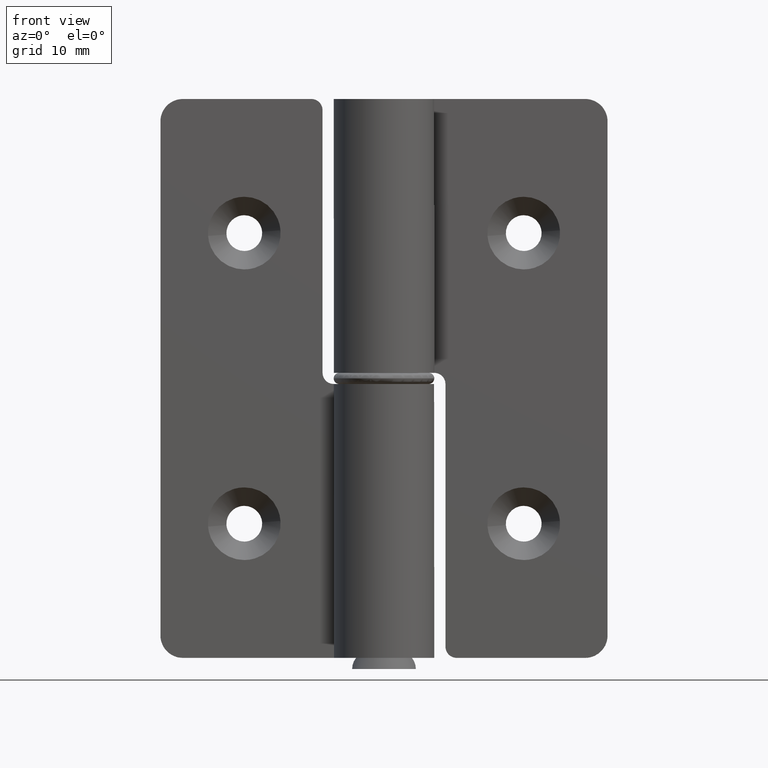
[diagram: clean part render]
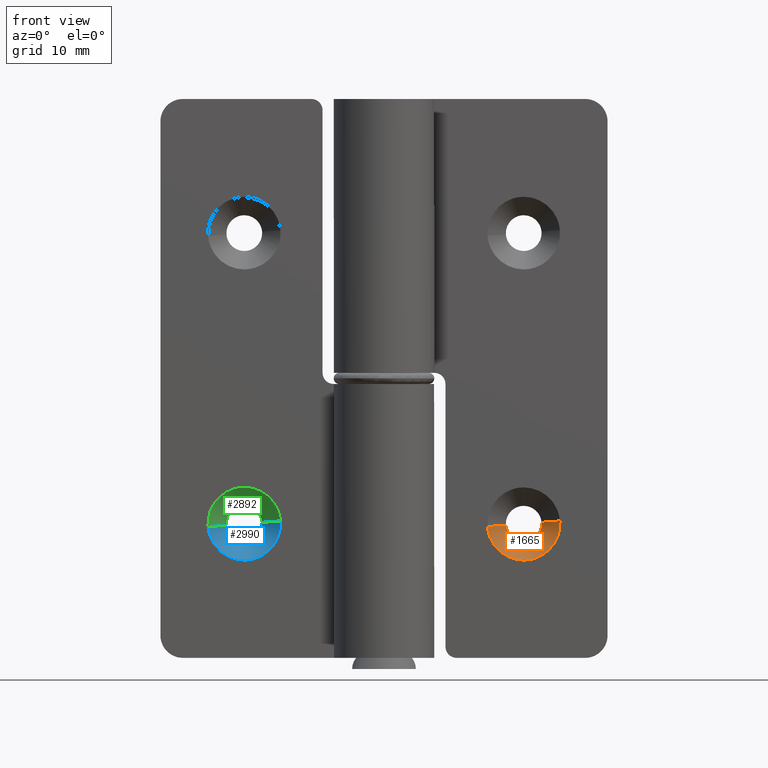
[diagram: same view with three faces highlighted in distinct colors, each labeled with its STEP entity id]
A machine part, front view with three faces highlighted in distinct colors.
Their STEP definitions:

[orange] entity #1665 — the highlighted face is a freeform B-spline surface patch.
#1474=CARTESIAN_POINT('',(14.095067733968611,4.149999999918546,12.125534553427871));
#1475=VERTEX_POINT('',#1474);
#1489=CARTESIAN_POINT('',(15.739981334575100,2.499999999981077,12.254992061257470));
#1490=VERTEX_POINT('',#1489);
#1491=CARTESIAN_POINT('',(14.095067733968611,4.149999999918546,12.125534553427871));
#1492=CARTESIAN_POINT('',(15.739981334575100,2.499999999981077,12.254992061257470));
#1493=QUASI_UNIFORM_CURVE('',1,(#1491,#1492),.UNSPECIFIED.,.F.,.U.);
#1494=EDGE_CURVE('',#1475,#1490,#1493,.T.);
#1511=CARTESIAN_POINT('',(9.260018665406104,2.499999999981077,11.745007938742530));
#1512=VERTEX_POINT('',#1511);
#1528=CARTESIAN_POINT('',(10.904932266012590,4.149999999918546,11.874465446572140));
#1529=VERTEX_POINT('',#1528);
#1530=CARTESIAN_POINT('',(10.904932266012590,4.149999999918546,11.874465446572140));
#1531=CARTESIAN_POINT('',(9.260018665406104,2.499999999981077,11.745007938742530));
#1532=QUASI_UNIFORM_CURVE('',1,(#1530,#1531),.UNSPECIFIED.,.F.,.U.);
#1533=EDGE_CURVE('',#1529,#1512,#1532,.T.);
#1568=CARTESIAN_POINT('',(10.946055106041859,4.191249999951990,11.877701884534829));
#1569=CARTESIAN_POINT('',(11.068353221507024,4.191249999951990,10.323756990586091));
#1570=CARTESIAN_POINT('',(12.622298115455770,4.191249999951990,10.446055106051260));
#1571=CARTESIAN_POINT('',(14.176243009404510,4.191249999951990,10.568353221516425));
#1572=CARTESIAN_POINT('',(14.053944893939340,4.191249999951990,12.122298115465171));
#1573=CARTESIAN_POINT('',(9.217867754397858,2.457718750001200,11.741690590247730));
#1574=CARTESIAN_POINT('',(9.476177164150126,2.457718750001199,8.459558344654990));
#1575=CARTESIAN_POINT('',(12.758309409742870,2.457718750001200,8.717867754407259));
#1576=CARTESIAN_POINT('',(16.040441655335609,2.457718750001199,8.976177164159527));
#1577=CARTESIAN_POINT('',(15.782132245583339,2.457718750001200,12.258309409752270));
#1585=(BOUNDED_SURFACE()B_SPLINE_SURFACE(2,1,((#1568,#1573),(#1569,#1574),(#1570,#1575),(#1571,#1576),(#1572,#1577)),.UNSPECIFIED.,.F.,.F.,.U.)B_SPLINE_SURFACE_WITH_KNOTS((3,2,3),(2,2),(0.0,5.454830179492141,10.909660358984279),(0.0,2.451583404477993),.UNSPECIFIED.)GEOMETRIC_REPRESENTATION_ITEM()RATIONAL_B_SPLINE_SURFACE(((1.0,1.0),(0.707106781186548,0.707106781186548),(1.0,1.0),(0.707106781186548,0.707106781186548),(1.0,1.0)))REPRESENTATION_ITEM('')SURFACE());
#1586=CARTESIAN_POINT('',(14.097015677451701,4.149999999953160,12.097677663335910));
#1587=VERTEX_POINT('',#1586);
#1588=CARTESIAN_POINT('',(14.095067733968607,4.149999999918546,12.125534553427867));
#1589=CARTESIAN_POINT('',(14.096163257409380,4.149999999935853,12.111614608104714));
#1590=CARTESIAN_POINT('',(14.097015677451706,4.149999999953160,12.097677663335917));
#1598=(BOUNDED_CURVE()B_SPLINE_CURVE(2,(#1588,#1589,#1590),.UNSPECIFIED.,.F.,.U.)B_SPLINE_CURVE_WITH_KNOTS((3,3),(0.236331300604684,0.239332962233251),.UNSPECIFIED.)CURVE()GEOMETRIC_REPRESENTATION_ITEM()RATIONAL_B_SPLINE_CURVE((0.969723356113210,0.972855475526161,0.976072041654518))REPRESENTATION_ITEM(''));
#1599=EDGE_CURVE('',#1475,#1587,#1598,.T.);
#1600=ORIENTED_EDGE('',*,*,#1599,.T.);
#1601=CARTESIAN_POINT('',(12.499999999990600,4.149999999953160,10.400000000008960));
#1602=VERTEX_POINT('',#1601);
#1603=CARTESIAN_POINT('',(14.097015677451703,4.149999999953160,12.097677663335912));
#1604=CARTESIAN_POINT('',(14.099999999981636,4.149999999953160,12.048884421317929));
#1605=CARTESIAN_POINT('',(14.099999999981639,4.149999999953160,12.0));
#1606=CARTESIAN_POINT('',(14.099999999981636,4.149999999953160,10.400000000008964));
#1607=CARTESIAN_POINT('',(12.499999999990600,4.149999999953160,10.400000000008960));
#1615=(BOUNDED_CURVE()B_SPLINE_CURVE(2,(#1603,#1604,#1605,#1606,#1607),.UNSPECIFIED.,.F.,.U.)B_SPLINE_CURVE_WITH_KNOTS((3,2,3),(0.239332962233251,0.250000000000000,0.500000000000000),.UNSPECIFIED.)CURVE()GEOMETRIC_REPRESENTATION_ITEM()RATIONAL_B_SPLINE_CURVE((0.976072041654518,0.987502787893168,1.0,0.707106781186548,1.0))REPRESENTATION_ITEM(''));
#1616=EDGE_CURVE('',#1587,#1602,#1615,.T.);
#1617=ORIENTED_EDGE('',*,*,#1616,.T.);
#1618=CARTESIAN_POINT('',(12.499999999990600,4.149999999953160,10.400000000008960));
#1619=CARTESIAN_POINT('',(11.020975213571541,4.149999999935853,10.400000000007605));
#1620=CARTESIAN_POINT('',(10.904932266012588,4.149999999918546,11.874465446572138));
#1628=(BOUNDED_CURVE()B_SPLINE_CURVE(2,(#1618,#1619,#1620),.UNSPECIFIED.,.F.,.U.)B_SPLINE_CURVE_WITH_KNOTS((3,3),(0.500000000000000,0.736331300604685),.UNSPECIFIED.)CURVE()GEOMETRIC_REPRESENTATION_ITEM()RATIONAL_B_SPLINE_CURVE((1.0,0.723120658638097,0.969723356113210))REPRESENTATION_ITEM(''));
#1629=EDGE_CURVE('',#1602,#1529,#1628,.T.);
#1630=ORIENTED_EDGE('',*,*,#1629,.T.);
#1631=ORIENTED_EDGE('',*,*,#1533,.T.);
#1632=CARTESIAN_POINT('',(12.499999999990600,2.500000000000000,8.750000000055810));
#1633=VERTEX_POINT('',#1632);
#1634=CARTESIAN_POINT('',(12.499999999990600,2.500000000000000,8.750000000055810));
#1635=CARTESIAN_POINT('',(9.495730902278329,2.499999999990539,8.750000000055069));
#1636=CARTESIAN_POINT('',(9.260018665406104,2.499999999981077,11.745007938742532));
#1644=(BOUNDED_CURVE()B_SPLINE_CURVE(2,(#1634,#1635,#1636),.UNSPECIFIED.,.F.,.U.)B_SPLINE_CURVE_WITH_KNOTS((3,3),(0.500000000000000,0.736331300625102),.UNSPECIFIED.)CURVE()GEOMETRIC_REPRESENTATION_ITEM()RATIONAL_B_SPLINE_CURVE((1.0,0.723120658614177,0.969723356155819))REPRESENTATION_ITEM(''));
#1645=EDGE_CURVE('',#1633,#1512,#1644,.T.);
#1646=ORIENTED_EDGE('',*,*,#1645,.F.);
#1647=CARTESIAN_POINT('',(15.739981334575095,2.499999999981077,12.254992061257470));
#1648=CARTESIAN_POINT('',(15.749999999953321,2.499999999981420,12.127692847846966));
#1649=CARTESIAN_POINT('',(15.749999999952941,2.499999999981792,12.000000000001430));
#1650=CARTESIAN_POINT('',(15.749999999943512,2.499999999991254,8.750000000056495));
#1651=CARTESIAN_POINT('',(12.499999999990600,2.500000000000000,8.750000000055810));
#1659=(BOUNDED_CURVE()B_SPLINE_CURVE(2,(#1647,#1648,#1649,#1650,#1651),.UNSPECIFIED.,.F.,.U.)B_SPLINE_CURVE_WITH_KNOTS((3,2,3),(0.236331300625102,0.250000000000000,0.500000000000000),.UNSPECIFIED.)CURVE()GEOMETRIC_REPRESENTATION_ITEM()RATIONAL_B_SPLINE_CURVE((0.969723356155820,0.983986122572371,1.0,0.707106781186547,1.0))REPRESENTATION_ITEM(''));
#1660=EDGE_CURVE('',#1490,#1633,#1659,.T.);
#1661=ORIENTED_EDGE('',*,*,#1660,.F.);
#1662=ORIENTED_EDGE('',*,*,#1494,.F.);
#1663=EDGE_LOOP('',(#1600,#1617,#1630,#1631,#1646,#1661,#1662));
#1664=FACE_OUTER_BOUND('',#1663,.T.);
#1665=ADVANCED_FACE('',(#1664),#1585,.F.);

[blue] entity #2990 — the highlighted face is a freeform B-spline surface patch.
#2799=CARTESIAN_POINT('',(-10.904932266031009,4.149999999914467,12.125534553427871));
#2800=VERTEX_POINT('',#2799);
#2814=CARTESIAN_POINT('',(-9.260018665377828,2.499999999930150,12.254992061261150));
#2815=VERTEX_POINT('',#2814);
#2816=CARTESIAN_POINT('',(-10.904932266031009,4.149999999914467,12.125534553427871));
#2817=CARTESIAN_POINT('',(-9.260018665377828,2.499999999930150,12.254992061261150));
#2818=QUASI_UNIFORM_CURVE('',1,(#2816,#2817),.UNSPECIFIED.,.F.,.U.);
#2819=EDGE_CURVE('',#2800,#2815,#2818,.T.);
#2836=CARTESIAN_POINT('',(-15.739981334640211,2.499999999930150,11.745007938738860));
#2837=VERTEX_POINT('',#2836);
#2853=CARTESIAN_POINT('',(-14.095067733987030,4.149999999914466,11.874465446572129));
#2854=VERTEX_POINT('',#2853);
#2855=CARTESIAN_POINT('',(-14.095067733987030,4.149999999914466,11.874465446572129));
#2856=CARTESIAN_POINT('',(-15.739981334640211,2.499999999930150,11.745007938738860));
#2857=QUASI_UNIFORM_CURVE('',1,(#2855,#2856),.UNSPECIFIED.,.F.,.U.);
#2858=EDGE_CURVE('',#2854,#2837,#2857,.T.);
#2893=CARTESIAN_POINT('',(-14.053944893956601,4.191249999949081,11.877701884534920));
#2894=CARTESIAN_POINT('',(-13.931646778491519,4.191249999949080,10.323756990587349));
#2895=CARTESIAN_POINT('',(-12.377701884543949,4.191249999949081,10.446055106052430));
#2896=CARTESIAN_POINT('',(-10.823756990596371,4.191249999949080,10.568353221517501));
#2897=CARTESIAN_POINT('',(-10.946055106061451,4.191249999949081,12.122298115465080));
#2898=CARTESIAN_POINT('',(-15.782132245649651,2.457718749949074,11.741690590243961));
#2899=CARTESIAN_POINT('',(-15.523822835893620,2.457718749949074,8.459558344603332));
#2900=CARTESIAN_POINT('',(-12.241690590252979,2.457718749949074,8.717867754359370));
#2901=CARTESIAN_POINT('',(-8.959558344612354,2.457718749949074,8.976177164115407));
#2902=CARTESIAN_POINT('',(-9.217867754368392,2.457718749949074,12.258309409756039));
#2910=(BOUNDED_SURFACE()B_SPLINE_SURFACE(2,1,((#2893,#2898),(#2894,#2899),(#2895,#2900),(#2896,#2901),(#2897,#2902)),.UNSPECIFIED.,.F.,.F.,.U.)B_SPLINE_SURFACE_WITH_KNOTS((3,2,3),(2,2),(0.0,5.454830179571729,10.909660359143460),(0.0,2.451583404547590),.UNSPECIFIED.)GEOMETRIC_REPRESENTATION_ITEM()RATIONAL_B_SPLINE_SURFACE(((1.0,1.0),(0.707106781186548,0.707106781186548),(1.0,1.0),(0.707106781186548,0.707106781186548),(1.0,1.0)))REPRESENTATION_ITEM('')SURFACE());
#2911=CARTESIAN_POINT('',(-10.902984322547921,4.149999999949080,12.097677663335910));
#2912=VERTEX_POINT('',#2911);
#2913=CARTESIAN_POINT('',(-10.904932266031011,4.149999999914466,12.125534553427867));
#2914=CARTESIAN_POINT('',(-10.903836742590236,4.149999999931773,12.111614608104714));
#2915=CARTESIAN_POINT('',(-10.902984322547917,4.149999999949080,12.097677663335917));
#2923=(BOUNDED_CURVE()B_SPLINE_CURVE(2,(#2913,#2914,#2915),.UNSPECIFIED.,.F.,.U.)B_SPLINE_CURVE_WITH_KNOTS((3,3),(0.236331300604684,0.239332962233251),.UNSPECIFIED.)CURVE()GEOMETRIC_REPRESENTATION_ITEM()RATIONAL_B_SPLINE_CURVE((0.969723356113210,0.972855475526161,0.976072041654518))REPRESENTATION_ITEM(''));
#2924=EDGE_CURVE('',#2800,#2912,#2923,.T.);
#2925=ORIENTED_EDGE('',*,*,#2924,.T.);
#2926=CARTESIAN_POINT('',(-12.500000000009020,4.149999999949080,10.400000000008960));
#2927=VERTEX_POINT('',#2926);
#2928=CARTESIAN_POINT('',(-10.902984322547923,4.149999999949081,12.097677663335913));
#2929=CARTESIAN_POINT('',(-10.900000000017991,4.149999999949080,12.048884421317931));
#2930=CARTESIAN_POINT('',(-10.900000000017990,4.149999999949080,12.0));
#2931=CARTESIAN_POINT('',(-10.900000000017986,4.149999999949080,10.400000000008964));
#2932=CARTESIAN_POINT('',(-12.500000000009020,4.149999999949080,10.400000000008960));
#2940=(BOUNDED_CURVE()B_SPLINE_CURVE(2,(#2928,#2929,#2930,#2931,#2932),.UNSPECIFIED.,.F.,.U.)B_SPLINE_CURVE_WITH_KNOTS((3,2,3),(0.239332962233251,0.250000000000000,0.500000000000000),.UNSPECIFIED.)CURVE()GEOMETRIC_REPRESENTATION_ITEM()RATIONAL_B_SPLINE_CURVE((0.976072041654518,0.987502787893168,1.0,0.707106781186548,1.0))REPRESENTATION_ITEM(''));
#2941=EDGE_CURVE('',#2912,#2927,#2940,.T.);
#2942=ORIENTED_EDGE('',*,*,#2941,.T.);
#2943=CARTESIAN_POINT('',(-12.500000000009020,4.149999999949080,10.400000000008960));
#2944=CARTESIAN_POINT('',(-13.979024786428075,4.149999999931774,10.400000000007608));
#2945=CARTESIAN_POINT('',(-14.095067733987030,4.149999999914465,11.874465446572135));
#2953=(BOUNDED_CURVE()B_SPLINE_CURVE(2,(#2943,#2944,#2945),.UNSPECIFIED.,.F.,.U.)B_SPLINE_CURVE_WITH_KNOTS((3,3),(0.500000000000000,0.736331300604684),.UNSPECIFIED.)CURVE()GEOMETRIC_REPRESENTATION_ITEM()RATIONAL_B_SPLINE_CURVE((1.0,0.723120658638097,0.969723356113209))REPRESENTATION_ITEM(''));
#2954=EDGE_CURVE('',#2927,#2854,#2953,.T.);
#2955=ORIENTED_EDGE('',*,*,#2954,.T.);
#2956=ORIENTED_EDGE('',*,*,#2858,.T.);
#2957=CARTESIAN_POINT('',(-12.500000000009020,2.499999999949075,8.750000000008965));
#2958=VERTEX_POINT('',#2957);
#2959=CARTESIAN_POINT('',(-12.500000000009020,2.499999999949075,8.750000000008965));
#2960=CARTESIAN_POINT('',(-15.504269097764601,2.499999999939612,8.750000000008221));
#2961=CARTESIAN_POINT('',(-15.739981334640218,2.499999999930151,11.745007938738858));
#2969=(BOUNDED_CURVE()B_SPLINE_CURVE(2,(#2959,#2960,#2961),.UNSPECIFIED.,.F.,.U.)B_SPLINE_CURVE_WITH_KNOTS((3,3),(0.500000000000000,0.736331300625102),.UNSPECIFIED.)CURVE()GEOMETRIC_REPRESENTATION_ITEM()RATIONAL_B_SPLINE_CURVE((1.0,0.723120658614176,0.969723356155820))REPRESENTATION_ITEM(''));
#2970=EDGE_CURVE('',#2958,#2837,#2969,.T.);
#2971=ORIENTED_EDGE('',*,*,#2970,.F.);
#2972=CARTESIAN_POINT('',(-9.260018665377828,2.499999999930150,12.254992061261142));
#2973=CARTESIAN_POINT('',(-9.249999999999464,2.499999999930493,12.127692847848804));
#2974=CARTESIAN_POINT('',(-9.249999999999835,2.499999999930866,12.000000000001430));
#2975=CARTESIAN_POINT('',(-9.250000000009267,2.499999999940327,8.750000000009651));
#2976=CARTESIAN_POINT('',(-12.500000000009020,2.499999999949075,8.750000000008965));
#2984=(BOUNDED_CURVE()B_SPLINE_CURVE(2,(#2972,#2973,#2974,#2975,#2976),.UNSPECIFIED.,.F.,.U.)B_SPLINE_CURVE_WITH_KNOTS((3,2,3),(0.236331300625102,0.250000000000000,0.500000000000000),.UNSPECIFIED.)CURVE()GEOMETRIC_REPRESENTATION_ITEM()RATIONAL_B_SPLINE_CURVE((0.969723356155820,0.983986122572371,1.0,0.707106781186548,1.0))REPRESENTATION_ITEM(''));
#2985=EDGE_CURVE('',#2815,#2958,#2984,.T.);
#2986=ORIENTED_EDGE('',*,*,#2985,.F.);
#2987=ORIENTED_EDGE('',*,*,#2819,.F.);
#2988=EDGE_LOOP('',(#2925,#2942,#2955,#2956,#2971,#2986,#2987));
#2989=FACE_OUTER_BOUND('',#2988,.T.);
#2990=ADVANCED_FACE('',(#2989),#2910,.F.);

[green] entity #2892 — the highlighted face is a freeform B-spline surface patch.
#2779=CARTESIAN_POINT('',(-10.946055106061451,4.191249999949081,12.122298115465080));
#2780=CARTESIAN_POINT('',(-11.068353221526523,4.191249999949080,13.676243009412651));
#2781=CARTESIAN_POINT('',(-12.622298115474100,4.191249999949081,13.553944893947580));
#2782=CARTESIAN_POINT('',(-14.176243009421679,4.191249999949080,13.431646778482500));
#2783=CARTESIAN_POINT('',(-14.053944893956601,4.191249999949081,11.877701884534920));
#2784=CARTESIAN_POINT('',(-9.217867754368392,2.457718749949074,12.258309409756039));
#2785=CARTESIAN_POINT('',(-9.476177164124430,2.457718749949074,15.540441655396666));
#2786=CARTESIAN_POINT('',(-12.758309409765060,2.457718749949074,15.282132245640630));
#2787=CARTESIAN_POINT('',(-16.040441655405697,2.457718749949074,15.023822835884587));
#2788=CARTESIAN_POINT('',(-15.782132245649651,2.457718749949074,11.741690590243961));
#2796=(BOUNDED_SURFACE()B_SPLINE_SURFACE(2,1,((#2779,#2784),(#2780,#2785),(#2781,#2786),(#2782,#2787),(#2783,#2788)),.UNSPECIFIED.,.F.,.F.,.U.)B_SPLINE_SURFACE_WITH_KNOTS((3,2,3),(2,2),(0.0,5.454830179571728,10.909660359143460),(0.0,2.451583404547590),.UNSPECIFIED.)GEOMETRIC_REPRESENTATION_ITEM()RATIONAL_B_SPLINE_SURFACE(((1.0,1.0),(0.707106781186548,0.707106781186548),(1.0,1.0),(0.707106781186548,0.707106781186548),(1.0,1.0)))REPRESENTATION_ITEM('')SURFACE());
#2797=CARTESIAN_POINT('',(-12.500000000009020,4.149999999949080,13.599999999991040));
#2798=VERTEX_POINT('',#2797);
#2799=CARTESIAN_POINT('',(-10.904932266031009,4.149999999914467,12.125534553427871));
#2800=VERTEX_POINT('',#2799);
#2801=CARTESIAN_POINT('',(-12.500000000009020,4.149999999949080,13.599999999991040));
#2802=CARTESIAN_POINT('',(-11.020975213589960,4.149999999931774,13.599999999992393));
#2803=CARTESIAN_POINT('',(-10.904932266031013,4.149999999914467,12.125534553427871));
#2811=(BOUNDED_CURVE()B_SPLINE_CURVE(2,(#2801,#2802,#2803),.UNSPECIFIED.,.F.,.U.)B_SPLINE_CURVE_WITH_KNOTS((3,3),(0.0,0.236331300604685),.UNSPECIFIED.)CURVE()GEOMETRIC_REPRESENTATION_ITEM()RATIONAL_B_SPLINE_CURVE((1.0,0.723120658638097,0.969723356113210))REPRESENTATION_ITEM(''));
#2812=EDGE_CURVE('',#2798,#2800,#2811,.T.);
#2813=ORIENTED_EDGE('',*,*,#2812,.T.);
#2814=CARTESIAN_POINT('',(-9.260018665377828,2.499999999930150,12.254992061261150));
#2815=VERTEX_POINT('',#2814);
#2816=CARTESIAN_POINT('',(-10.904932266031009,4.149999999914467,12.125534553427871));
#2817=CARTESIAN_POINT('',(-9.260018665377828,2.499999999930150,12.254992061261150));
#2818=QUASI_UNIFORM_CURVE('',1,(#2816,#2817),.UNSPECIFIED.,.F.,.U.);
#2819=EDGE_CURVE('',#2800,#2815,#2818,.T.);
#2820=ORIENTED_EDGE('',*,*,#2819,.T.);
#2821=CARTESIAN_POINT('',(-12.500000000009020,2.499999999949075,15.249999999991040));
#2822=VERTEX_POINT('',#2821);
#2823=CARTESIAN_POINT('',(-12.500000000009020,2.499999999949075,15.249999999991040));
#2824=CARTESIAN_POINT('',(-9.495730902253447,2.499999999939612,15.249999999991779));
#2825=CARTESIAN_POINT('',(-9.260018665377828,2.499999999930150,12.254992061261143));
#2833=(BOUNDED_CURVE()B_SPLINE_CURVE(2,(#2823,#2824,#2825),.UNSPECIFIED.,.F.,.U.)B_SPLINE_CURVE_WITH_KNOTS((3,3),(0.0,0.236331300625102),.UNSPECIFIED.)CURVE()GEOMETRIC_REPRESENTATION_ITEM()RATIONAL_B_SPLINE_CURVE((1.0,0.723120658614177,0.969723356155820))REPRESENTATION_ITEM(''));
#2834=EDGE_CURVE('',#2822,#2815,#2833,.T.);
#2835=ORIENTED_EDGE('',*,*,#2834,.F.);
#2836=CARTESIAN_POINT('',(-15.739981334640211,2.499999999930150,11.745007938738860));
#2837=VERTEX_POINT('',#2836);
#2838=CARTESIAN_POINT('',(-15.739981334640218,2.499999999930151,11.745007938738858));
#2839=CARTESIAN_POINT('',(-15.750000000018581,2.499999999930493,11.872307152151199));
#2840=CARTESIAN_POINT('',(-15.750000000018209,2.499999999930866,11.999999999998570));
#2841=CARTESIAN_POINT('',(-15.750000000008775,2.499999999940327,15.249999999990354));
#2842=CARTESIAN_POINT('',(-12.500000000009020,2.499999999949075,15.249999999991040));
#2850=(BOUNDED_CURVE()B_SPLINE_CURVE(2,(#2838,#2839,#2840,#2841,#2842),.UNSPECIFIED.,.F.,.U.)B_SPLINE_CURVE_WITH_KNOTS((3,2,3),(0.736331300625102,0.750000000000000,1.0),.UNSPECIFIED.)CURVE()GEOMETRIC_REPRESENTATION_ITEM()RATIONAL_B_SPLINE_CURVE((0.969723356155820,0.983986122572371,1.0,0.707106781186548,1.0))REPRESENTATION_ITEM(''));
#2851=EDGE_CURVE('',#2837,#2822,#2850,.T.);
#2852=ORIENTED_EDGE('',*,*,#2851,.F.);
#2853=CARTESIAN_POINT('',(-14.095067733987030,4.149999999914466,11.874465446572129));
#2854=VERTEX_POINT('',#2853);
#2855=CARTESIAN_POINT('',(-14.095067733987030,4.149999999914466,11.874465446572129));
#2856=CARTESIAN_POINT('',(-15.739981334640211,2.499999999930150,11.745007938738860));
#2857=QUASI_UNIFORM_CURVE('',1,(#2855,#2856),.UNSPECIFIED.,.F.,.U.);
#2858=EDGE_CURVE('',#2854,#2837,#2857,.T.);
#2859=ORIENTED_EDGE('',*,*,#2858,.F.);
#2860=CARTESIAN_POINT('',(-14.097015677470131,4.149999999949080,11.902322336664090));
#2861=VERTEX_POINT('',#2860);
#2862=CARTESIAN_POINT('',(-14.095067733987030,4.149999999914465,11.874465446572135));
#2863=CARTESIAN_POINT('',(-14.096163257427801,4.149999999931773,11.888385391895286));
#2864=CARTESIAN_POINT('',(-14.097015677470131,4.149999999949080,11.902322336664087));
#2872=(BOUNDED_CURVE()B_SPLINE_CURVE(2,(#2862,#2863,#2864),.UNSPECIFIED.,.F.,.U.)B_SPLINE_CURVE_WITH_KNOTS((3,3),(0.736331300604684,0.739332962233251),.UNSPECIFIED.)CURVE()GEOMETRIC_REPRESENTATION_ITEM()RATIONAL_B_SPLINE_CURVE((0.969723356113209,0.972855475526161,0.976072041654518))REPRESENTATION_ITEM(''));
#2873=EDGE_CURVE('',#2854,#2861,#2872,.T.);
#2874=ORIENTED_EDGE('',*,*,#2873,.T.);
#2875=CARTESIAN_POINT('',(-14.097015677470131,4.149999999949080,11.902322336664087));
#2876=CARTESIAN_POINT('',(-14.100000000000055,4.149999999949080,11.951115578682078));
#2877=CARTESIAN_POINT('',(-14.100000000000060,4.149999999949080,12.0));
#2878=CARTESIAN_POINT('',(-14.100000000000056,4.149999999949080,13.599999999991036));
#2879=CARTESIAN_POINT('',(-12.500000000009020,4.149999999949080,13.599999999991040));
#2887=(BOUNDED_CURVE()B_SPLINE_CURVE(2,(#2875,#2876,#2877,#2878,#2879),.UNSPECIFIED.,.F.,.U.)B_SPLINE_CURVE_WITH_KNOTS((3,2,3),(0.739332962233251,0.750000000000000,1.0),.UNSPECIFIED.)CURVE()GEOMETRIC_REPRESENTATION_ITEM()RATIONAL_B_SPLINE_CURVE((0.976072041654518,0.987502787893168,1.0,0.707106781186548,1.0))REPRESENTATION_ITEM(''));
#2888=EDGE_CURVE('',#2861,#2798,#2887,.T.);
#2889=ORIENTED_EDGE('',*,*,#2888,.T.);
#2890=EDGE_LOOP('',(#2813,#2820,#2835,#2852,#2859,#2874,#2889));
#2891=FACE_OUTER_BOUND('',#2890,.T.);
#2892=ADVANCED_FACE('',(#2891),#2796,.F.);